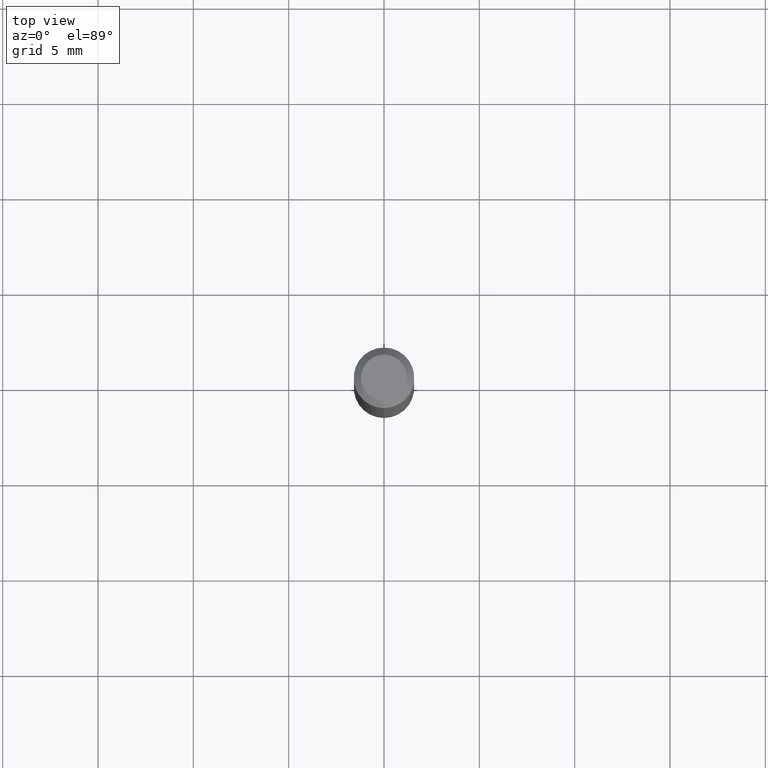
[diagram: clean part render]
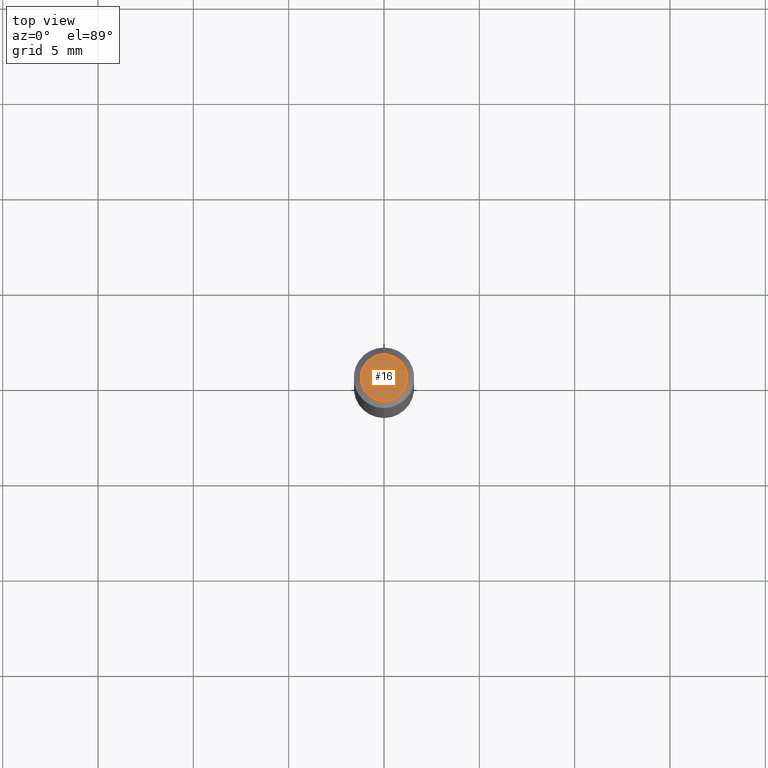
[diagram: same view with one face highlighted and labeled with its STEP entity id]
A machine part, top view. The second image highlights one B-rep face of the part: STEP entity #16.
In plain terms, the highlighted planar face has unit normal (0, -0, -1).
Its self-contained STEP definition (entity closure, byte-faithful):
#16 = ADVANCED_FACE ( 'NONE', ( #100 ), #20, .F. ) ;
#20 = PLANE ( 'NONE',  #99 ) ;
#22 = DIRECTION ( 'NONE',  ( -6.982962677686266711E-15, -1.000000000000000000, 3.491467521365150584E-15 ) ) ;
#68 = CARTESIAN_POINT ( 'NONE',  ( 3.316907271900976096E-16, 0.04749999999999999362, -3.299185092860269096E-16 ) ) ;
#73 = CARTESIAN_POINT ( 'NONE',  ( 8.024778957055871587E-45, -1.145716701727707172E-30, -3.281476040423644782E-16 ) ) ;
#91 = CIRCLE ( 'NONE', #378, 0.04749999999999999362 ) ;
#99 = AXIS2_PLACEMENT_3D ( 'NONE', #68, #231, #312 ) ;
#100 = FACE_OUTER_BOUND ( 'NONE', #214, .T. ) ;
#136 = DIRECTION ( 'NONE',  ( -6.982962677686266711E-15, -1.000000000000000000, 3.491467521365150584E-15 ) ) ;
#159 = CARTESIAN_POINT ( 'NONE',  ( -3.773273898774340269E-16, -0.04749999999999999362, -1.623028967775198570E-16 ) ) ;
#214 = EDGE_LOOP ( 'NONE', ( #408, #450 ) ) ;
#231 = DIRECTION ( 'NONE',  ( 2.445478454878450573E-29, -3.491467521365150190E-15, -1.000000000000000000 ) ) ;
#248 = VERTEX_POINT ( 'NONE', #478 ) ;
#312 = DIRECTION ( 'NONE',  ( 6.982962677686265922E-15, 1.000000000000000000, -3.491467521365150190E-15 ) ) ;
#325 = AXIS2_PLACEMENT_3D ( 'NONE', #338, #507, #136 ) ;
#338 = CARTESIAN_POINT ( 'NONE',  ( 8.024778957055871587E-45, -1.145716701727707172E-30, -3.281476040423644782E-16 ) ) ;
#343 = CIRCLE ( 'NONE', #325, 0.04749999999999999362 ) ;
#378 = AXIS2_PLACEMENT_3D ( 'NONE', #73, #504, #22 ) ;
#398 = EDGE_CURVE ( 'NONE', #248, #465, #343, .T. ) ;
#408 = ORIENTED_EDGE ( 'NONE', *, *, #398, .T. ) ;
#417 = EDGE_CURVE ( 'NONE', #465, #248, #91, .T. ) ;
#450 = ORIENTED_EDGE ( 'NONE', *, *, #417, .T. ) ;
#465 = VERTEX_POINT ( 'NONE', #159 ) ;
#478 = CARTESIAN_POINT ( 'NONE',  ( 3.840629472727447874E-16, 0.04749999999999999362, -4.939923113072091241E-16 ) ) ;
#504 = DIRECTION ( 'NONE',  ( -2.445478454878450853E-29, 3.491467521365150190E-15, 1.000000000000000000 ) ) ;
#507 = DIRECTION ( 'NONE',  ( -2.445478454878450853E-29, 3.491467521365150190E-15, 1.000000000000000000 ) ) ;